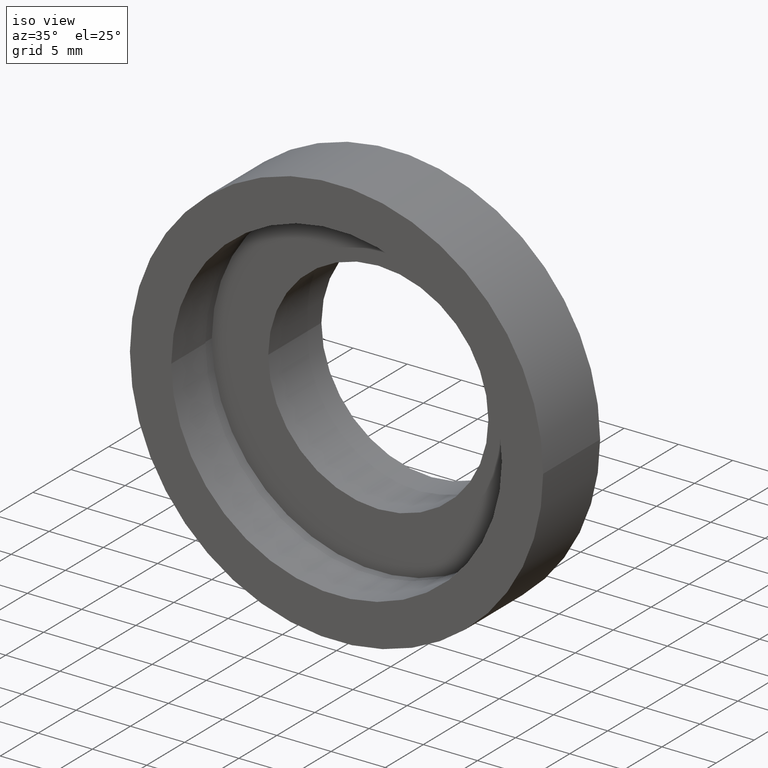
[diagram: clean part render]
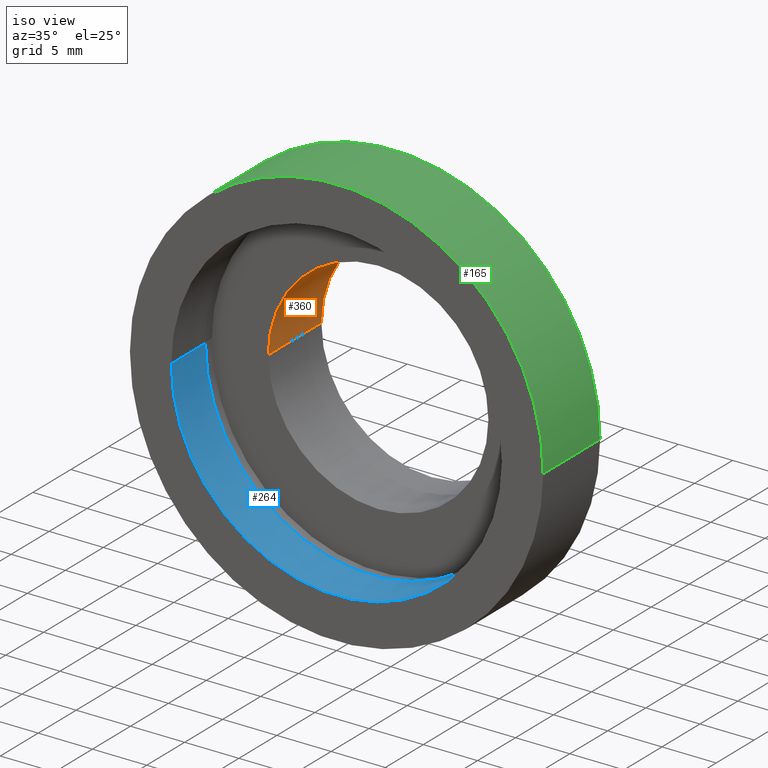
[diagram: same view with three faces highlighted in distinct colors, each labeled with its STEP entity id]
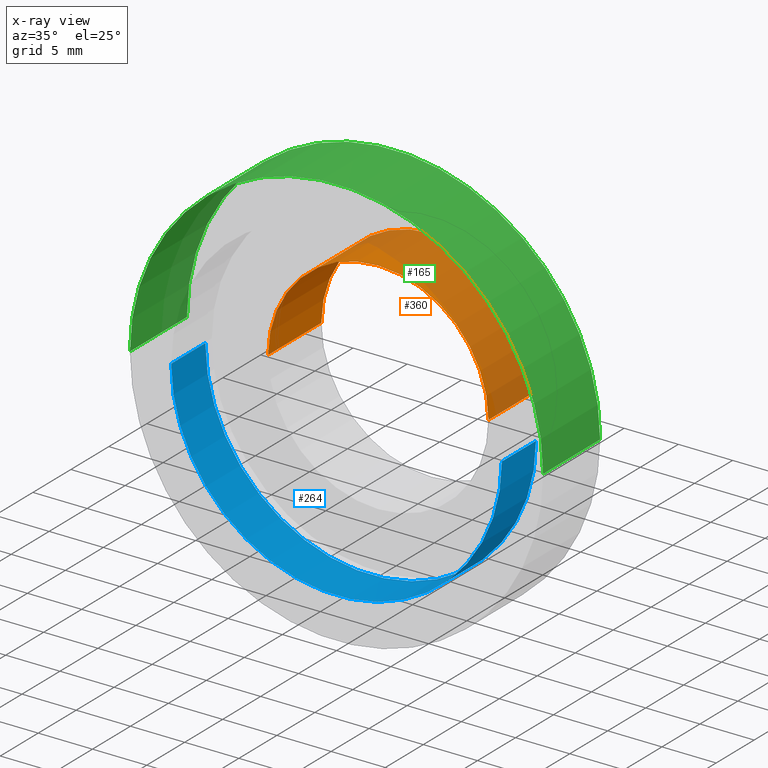
[diagram: x-ray of the same camera — body ghosted, the three highlighted faces saturated]
A machine part, iso view with three faces highlighted in distinct colors.
The next image is the same camera in x-ray (body ghosted, the three faces saturated) — at least one of them is partly hidden behind the body in this view.
Their STEP definitions:

[orange] entity #360 — the highlighted cylindrical surface (partial cylindrical patch) has radius 10.15 mm, axis along (-0, 1, -0).
#3 = CARTESIAN_POINT ( 'NONE',  ( 10.15000000000000000, 12.49999999999999800, 1.243016501134563700E-015 ) ) ;
#21 = CARTESIAN_POINT ( 'NONE',  ( -10.15000000000000000, 12.49999999999999500, 0.0000000000000000000 ) ) ;
#33 = CARTESIAN_POINT ( 'NONE',  ( 5.371323195044473300E-016, 12.49999999999999600, 0.0000000000000000000 ) ) ;
#39 = VECTOR ( 'NONE', #224, 1000.000000000000000 ) ;
#43 = CARTESIAN_POINT ( 'NONE',  ( 10.15000000000000000, 5.499999999999997300, 1.243016501134563700E-015 ) ) ;
#46 = EDGE_LOOP ( 'NONE', ( #283, #473, #101, #344 ) ) ;
#60 = FACE_OUTER_BOUND ( 'NONE', #46, .T. ) ;
#62 = EDGE_CURVE ( 'NONE', #427, #143, #544, .T. ) ;
#101 = ORIENTED_EDGE ( 'NONE', *, *, #126, .T. ) ;
#106 = DIRECTION ( 'NONE',  ( -1.224646799147351000E-016, 1.000000000000000000, -0.0000000000000000000 ) ) ;
#118 = LINE ( 'NONE', #381, #620 ) ;
#126 = EDGE_CURVE ( 'NONE', #242, #427, #585, .T. ) ;
#143 = VERTEX_POINT ( 'NONE', #3 ) ;
#156 = DIRECTION ( 'NONE',  ( -1.000000000000000000, 0.0000000000000000000, 0.0000000000000000000 ) ) ;
#205 = DIRECTION ( 'NONE',  ( -1.224646799147351000E-016, 1.000000000000000000, -0.0000000000000000000 ) ) ;
#224 = DIRECTION ( 'NONE',  ( -1.224646799147351000E-016, 1.000000000000000000, -0.0000000000000000000 ) ) ;
#237 = CIRCLE ( 'NONE', #536, 10.14999999999999900 ) ;
#242 = VERTEX_POINT ( 'NONE', #569 ) ;
#255 = DIRECTION ( 'NONE',  ( -1.000000000000000000, -8.545435842250282200E-017, 0.0000000000000000000 ) ) ;
#283 = ORIENTED_EDGE ( 'NONE', *, *, #614, .F. ) ;
#344 = ORIENTED_EDGE ( 'NONE', *, *, #62, .T. ) ;
#360 = ADVANCED_FACE ( 'NONE', ( #60 ), #540, .F. ) ;
#381 = CARTESIAN_POINT ( 'NONE',  ( 10.14999999999999900, 16.88601823708207700, 1.243016501134563500E-015 ) ) ;
#386 = EDGE_CURVE ( 'NONE', #242, #612, #237, .T. ) ;
#417 = CARTESIAN_POINT ( 'NONE',  ( -10.14999999999999900, 16.88601823708207700, 0.0000000000000000000 ) ) ;
#422 = DIRECTION ( 'NONE',  ( -1.000000000000000000, -1.709087168450056200E-016, 0.0000000000000000000 ) ) ;
#427 = VERTEX_POINT ( 'NONE', #21 ) ;
#442 = CARTESIAN_POINT ( 'NONE',  ( 0.0000000000000000000, 16.88601823708207700, 0.0000000000000000000 ) ) ;
#461 = AXIS2_PLACEMENT_3D ( 'NONE', #442, #106, #156 ) ;
#462 = DIRECTION ( 'NONE',  ( -1.224646799147351000E-016, 1.000000000000000000, -0.0000000000000000000 ) ) ;
#470 = DIRECTION ( 'NONE',  ( -1.224646799147351000E-016, 1.000000000000000000, -0.0000000000000000000 ) ) ;
#473 = ORIENTED_EDGE ( 'NONE', *, *, #386, .F. ) ;
#495 = AXIS2_PLACEMENT_3D ( 'NONE', #33, #462, #422 ) ;
#536 = AXIS2_PLACEMENT_3D ( 'NONE', #547, #205, #255 ) ;
#540 = CYLINDRICAL_SURFACE ( 'NONE', #461, 10.14999999999999900 ) ;
#544 = CIRCLE ( 'NONE', #495, 10.15000000000000000 ) ;
#547 = CARTESIAN_POINT ( 'NONE',  ( 1.394385078907593200E-015, 5.499999999999996400, 0.0000000000000000000 ) ) ;
#569 = CARTESIAN_POINT ( 'NONE',  ( -10.14999999999999700, 5.499999999999995600, 0.0000000000000000000 ) ) ;
#585 = LINE ( 'NONE', #417, #39 ) ;
#612 = VERTEX_POINT ( 'NONE', #43 ) ;
#614 = EDGE_CURVE ( 'NONE', #612, #143, #118, .T. ) ;
#620 = VECTOR ( 'NONE', #470, 1000.000000000000000 ) ;

[blue] entity #264 — the highlighted cylindrical surface (partial cylindrical patch) has radius 15.24 mm, axis along (-0, 1, -0).
#65 = DIRECTION ( 'NONE',  ( -1.000000000000000000, -1.224646799147350700E-016, 0.0000000000000000000 ) ) ;
#77 = CIRCLE ( 'NONE', #590, 15.24000000000000000 ) ;
#89 = LINE ( 'NONE', #474, #456 ) ;
#97 = VERTEX_POINT ( 'NONE', #604 ) ;
#136 = DIRECTION ( 'NONE',  ( -1.224646799147351000E-016, 1.000000000000000000, -0.0000000000000000000 ) ) ;
#162 = CARTESIAN_POINT ( 'NONE',  ( 1.516849758822328300E-015, 4.499999999999997300, 0.0000000000000000000 ) ) ;
#185 = DIRECTION ( 'NONE',  ( -1.224646799147351000E-016, 1.000000000000000000, -0.0000000000000000000 ) ) ;
#190 = CARTESIAN_POINT ( 'NONE',  ( 15.24000000000000400, -1.603085230053050900E-015, 1.866361721900566200E-015 ) ) ;
#195 = ORIENTED_EDGE ( 'NONE', *, *, #486, .T. ) ;
#207 = AXIS2_PLACEMENT_3D ( 'NONE', #162, #309, #211 ) ;
#208 = CIRCLE ( 'NONE', #207, 15.23999999999999700 ) ;
#211 = DIRECTION ( 'NONE',  ( -1.000000000000000000, -1.138269997360109900E-016, 0.0000000000000000000 ) ) ;
#216 = EDGE_CURVE ( 'NONE', #467, #97, #89, .T. ) ;
#217 = DIRECTION ( 'NONE',  ( -1.224646799147351000E-016, 1.000000000000000000, -0.0000000000000000000 ) ) ;
#223 = AXIS2_PLACEMENT_3D ( 'NONE', #284, #136, #300 ) ;
#254 = VERTEX_POINT ( 'NONE', #190 ) ;
#264 = ADVANCED_FACE ( 'NONE', ( #579 ), #513, .F. ) ;
#282 = CARTESIAN_POINT ( 'NONE',  ( 15.23999999999999800, 4.499999999999999100, 1.866361721900565400E-015 ) ) ;
#284 = CARTESIAN_POINT ( 'NONE',  ( 0.0000000000000000000, 16.88601823708207700, 0.0000000000000000000 ) ) ;
#300 = DIRECTION ( 'NONE',  ( -1.000000000000000000, -2.276539994720219300E-016, 0.0000000000000000000 ) ) ;
#309 = DIRECTION ( 'NONE',  ( -1.224646799147351000E-016, 1.000000000000000000, -0.0000000000000000000 ) ) ;
#407 = DIRECTION ( 'NONE',  ( -1.224646799147351000E-016, 1.000000000000000000, -0.0000000000000000000 ) ) ;
#415 = EDGE_CURVE ( 'NONE', #556, #97, #208, .T. ) ;
#423 = EDGE_LOOP ( 'NONE', ( #493, #195, #567, #512 ) ) ;
#450 = CARTESIAN_POINT ( 'NONE',  ( 2.067940818438636500E-015, -3.469446951953614200E-015, 0.0000000000000000000 ) ) ;
#452 = EDGE_CURVE ( 'NONE', #254, #467, #77, .T. ) ;
#456 = VECTOR ( 'NONE', #185, 1000.000000000000000 ) ;
#467 = VERTEX_POINT ( 'NONE', #550 ) ;
#474 = CARTESIAN_POINT ( 'NONE',  ( -15.23999999999999800, 16.88601823708207300, 0.0000000000000000000 ) ) ;
#486 = EDGE_CURVE ( 'NONE', #254, #556, #511, .T. ) ;
#493 = ORIENTED_EDGE ( 'NONE', *, *, #452, .F. ) ;
#504 = CARTESIAN_POINT ( 'NONE',  ( 15.23999999999999800, 16.88601823708208000, 1.866361721900565800E-015 ) ) ;
#511 = LINE ( 'NONE', #504, #596 ) ;
#512 = ORIENTED_EDGE ( 'NONE', *, *, #216, .F. ) ;
#513 = CYLINDRICAL_SURFACE ( 'NONE', #223, 15.23999999999999800 ) ;
#550 = CARTESIAN_POINT ( 'NONE',  ( -15.23999999999999800, -5.335808673854176800E-015, 0.0000000000000000000 ) ) ;
#556 = VERTEX_POINT ( 'NONE', #282 ) ;
#567 = ORIENTED_EDGE ( 'NONE', *, *, #415, .T. ) ;
#579 = FACE_OUTER_BOUND ( 'NONE', #423, .T. ) ;
#590 = AXIS2_PLACEMENT_3D ( 'NONE', #450, #407, #65 ) ;
#596 = VECTOR ( 'NONE', #217, 1000.000000000000000 ) ;
#604 = CARTESIAN_POINT ( 'NONE',  ( -15.23999999999999500, 4.499999999999995600, 0.0000000000000000000 ) ) ;

[green] entity #165 — the highlighted cylindrical surface (partial cylindrical patch) has radius 19.05 mm, axis along (-0, 1, -0).
#19 = DIRECTION ( 'NONE',  ( -1.000000000000000000, -1.224646799147351200E-016, 0.0000000000000000000 ) ) ;
#24 = EDGE_CURVE ( 'NONE', #32, #182, #565, .T. ) ;
#32 = VERTEX_POINT ( 'NONE', #127 ) ;
#47 = LINE ( 'NONE', #600, #146 ) ;
#51 = AXIS2_PLACEMENT_3D ( 'NONE', #338, #334, #329 ) ;
#90 = CARTESIAN_POINT ( 'NONE',  ( 19.05000000000000400, 7.499999999999999100, 2.332952152375708400E-015 ) ) ;
#103 = FACE_OUTER_BOUND ( 'NONE', #221, .T. ) ;
#110 = CARTESIAN_POINT ( 'NONE',  ( -19.04999999999999700, -5.802399104329318300E-015, 0.0000000000000000000 ) ) ;
#127 = CARTESIAN_POINT ( 'NONE',  ( 19.05000000000000400, -1.136494799577910300E-015, 2.332952152375708400E-015 ) ) ;
#144 = DIRECTION ( 'NONE',  ( -1.000000000000000000, -1.365923996832131400E-016, 0.0000000000000000000 ) ) ;
#146 = VECTOR ( 'NONE', #270, 1000.000000000000000 ) ;
#165 = ADVANCED_FACE ( 'NONE', ( #103 ), #293, .T. ) ;
#182 = VERTEX_POINT ( 'NONE', #90 ) ;
#221 = EDGE_LOOP ( 'NONE', ( #307, #545, #298, #409 ) ) ;
#270 = DIRECTION ( 'NONE',  ( -1.224646799147351000E-016, 1.000000000000000000, -0.0000000000000000000 ) ) ;
#293 = CYLINDRICAL_SURFACE ( 'NONE', #51, 19.05000000000000400 ) ;
#298 = ORIENTED_EDGE ( 'NONE', *, *, #551, .F. ) ;
#307 = ORIENTED_EDGE ( 'NONE', *, *, #448, .T. ) ;
#308 = DIRECTION ( 'NONE',  ( -1.224646799147351000E-016, 1.000000000000000000, -0.0000000000000000000 ) ) ;
#319 = CARTESIAN_POINT ( 'NONE',  ( 19.05000000000000400, 16.88601823708208000, 2.332952152375708400E-015 ) ) ;
#329 = DIRECTION ( 'NONE',  ( -1.000000000000000000, -1.821231995776175000E-016, 0.0000000000000000000 ) ) ;
#332 = AXIS2_PLACEMENT_3D ( 'NONE', #527, #374, #144 ) ;
#334 = DIRECTION ( 'NONE',  ( -1.224646799147351000E-016, 1.000000000000000000, -0.0000000000000000000 ) ) ;
#337 = AXIS2_PLACEMENT_3D ( 'NONE', #354, #308, #19 ) ;
#338 = CARTESIAN_POINT ( 'NONE',  ( 0.0000000000000000000, 16.88601823708207700, 0.0000000000000000000 ) ) ;
#346 = VECTOR ( 'NONE', #466, 1000.000000000000000 ) ;
#354 = CARTESIAN_POINT ( 'NONE',  ( 2.067940818438636500E-015, -3.469446951953614200E-015, 0.0000000000000000000 ) ) ;
#374 = DIRECTION ( 'NONE',  ( -1.224646799147351000E-016, 1.000000000000000000, -0.0000000000000000000 ) ) ;
#409 = ORIENTED_EDGE ( 'NONE', *, *, #459, .F. ) ;
#441 = VERTEX_POINT ( 'NONE', #110 ) ;
#448 = EDGE_CURVE ( 'NONE', #441, #32, #574, .T. ) ;
#459 = EDGE_CURVE ( 'NONE', #441, #607, #47, .T. ) ;
#466 = DIRECTION ( 'NONE',  ( -1.224646799147351000E-016, 1.000000000000000000, -0.0000000000000000000 ) ) ;
#500 = CIRCLE ( 'NONE', #332, 19.05000000000000400 ) ;
#527 = CARTESIAN_POINT ( 'NONE',  ( 1.149455719078123100E-015, 7.499999999999996400, 0.0000000000000000000 ) ) ;
#545 = ORIENTED_EDGE ( 'NONE', *, *, #24, .T. ) ;
#551 = EDGE_CURVE ( 'NONE', #607, #182, #500, .T. ) ;
#565 = LINE ( 'NONE', #319, #346 ) ;
#574 = CIRCLE ( 'NONE', #337, 19.05000000000000100 ) ;
#600 = CARTESIAN_POINT ( 'NONE',  ( -19.05000000000000400, 16.88601823708207300, 0.0000000000000000000 ) ) ;
#607 = VERTEX_POINT ( 'NONE', #621 ) ;
#621 = CARTESIAN_POINT ( 'NONE',  ( -19.05000000000000400, 7.499999999999993800, 0.0000000000000000000 ) ) ;